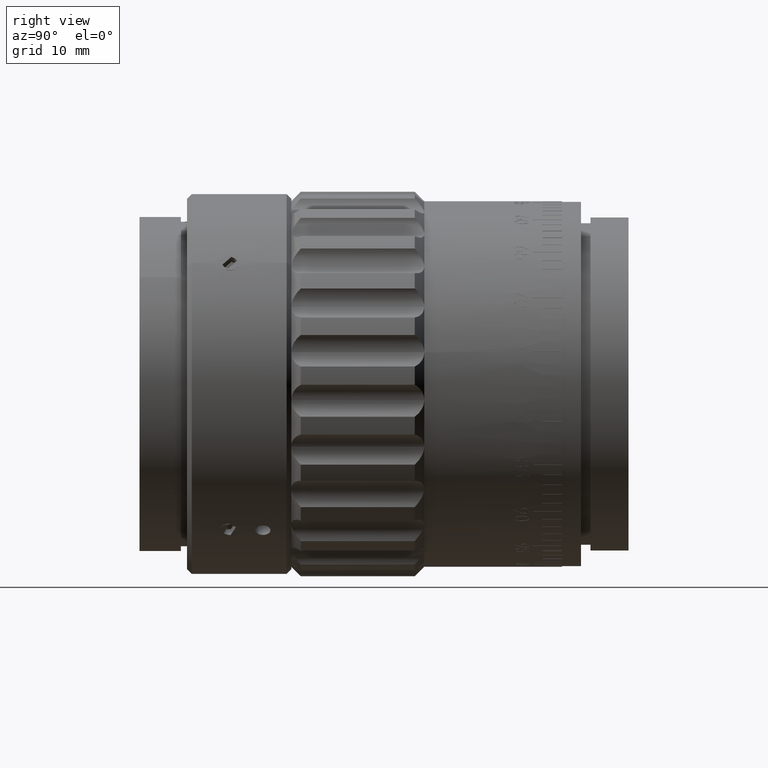
[diagram: clean part render]
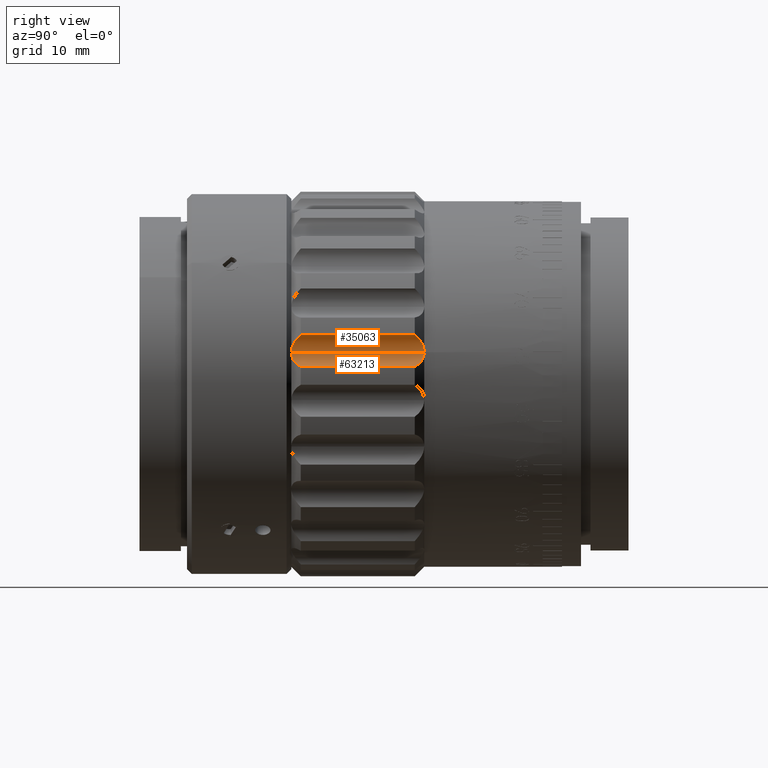
[diagram: same view with one multi-face feature highlighted, each face labeled with its STEP entity id]
A machine part, right view. The highlighted faces form ONE feature: a constant-radius fillet chain: 2 tangent blend faces with common blend radius 2 mm. The faces share edges in the B-rep.
Their STEP definitions:
[1] entity #63213 (Cylinder):
#169 = CARTESIAN_POINT ( 'NONE',  ( 1.689331474415179500, -15.21457821189761700, 20.17941176470588300 ) ) ;
#901 = CARTESIAN_POINT ( 'NONE',  ( 0.6469208136554194200, -28.09866492122143500, 19.35530132291251300 ) ) ;
#1381 = CYLINDRICAL_SURFACE ( 'NONE', #24734, 2.000000000000001800 ) ;
#1629 = CARTESIAN_POINT ( 'NONE',  ( 0.8924242504996315900, -27.98627902371864100, 19.45800297024074500 ) ) ;
#4379 = CARTESIAN_POINT ( 'NONE',  ( 0.0000000000000000000, -2.714578211897591900, 21.25000000000003200 ) ) ;
#7131 = CARTESIAN_POINT ( 'NONE',  ( 0.1924684439730819100, -14.22232636360995700, 19.25701502290277700 ) ) ;
#9301 = CARTESIAN_POINT ( 'NONE',  ( 1.612277997658264800, -27.34216877474892000, 20.05782546363579800 ) ) ;
#9544 = ORIENTED_EDGE ( 'NONE', *, *, #99665, .T. ) ;
#10491 = FACE_OUTER_BOUND ( 'NONE', #49579, .T. ) ;
#10872 = EDGE_CURVE ( 'NONE', #45040, #30666, #55238, .T. ) ;
#12432 = DIRECTION ( 'NONE',  ( 0.0000000000000000000, 0.0000000000000000000, -1.000000000000000000 ) ) ;
#15543 = CARTESIAN_POINT ( 'NONE',  ( 0.9685587019836825500, -14.48667491162578700, 19.49817720688123800 ) ) ;
#22971 = DIRECTION ( 'NONE',  ( -0.0000000000000000000, -1.000000000000000000, -0.0000000000000000000 ) ) ;
#24449 = VERTEX_POINT ( 'NONE', #69302 ) ;
#24734 = AXIS2_PLACEMENT_3D ( 'NONE', #4379, #62545, #12432 ) ;
#30666 = VERTEX_POINT ( 'NONE', #44466 ) ;
#32839 = CARTESIAN_POINT ( 'NONE',  ( 1.689331474415180800, -27.21457821189758500, 20.17941176470588300 ) ) ;
#33379 = ORIENTED_EDGE ( 'NONE', *, *, #82600, .T. ) ;
#34561 = CARTESIAN_POINT ( 'NONE',  ( 0.3830866627948920600, -28.18305819022596700, 19.27850232737179000 ) ) ;
#34891 = CARTESIAN_POINT ( 'NONE',  ( 1.689331474415179500, -15.21457821189761700, 20.17941176470588300 ) ) ;
#40808 = EDGE_CURVE ( 'NONE', #24449, #44417, #76154, .T. ) ;
#40951 = LINE ( 'NONE', #73110, #76360 ) ;
#41235 = VECTOR ( 'NONE', #77822, 1000.000000000000000 ) ;
#42603 = CARTESIAN_POINT ( 'NONE',  ( 1.521346338354015300, -27.46400353888410400, 19.94287823508873500 ) ) ;
#44417 = VERTEX_POINT ( 'NONE', #32839 ) ;
#44466 = CARTESIAN_POINT ( 'NONE',  ( -7.571701538477491400E-021, -14.21457821189763800, 19.25000000000003200 ) ) ;
#45040 = VERTEX_POINT ( 'NONE', #34891 ) ;
#48840 = CARTESIAN_POINT ( 'NONE',  ( 0.6476829353627365800, -14.33076888788117700, 19.35555401056183200 ) ) ;
#49191 = CARTESIAN_POINT ( 'NONE',  ( 1.521442548785324300, -14.96534390872483700, 19.94306025935076900 ) ) ;
#49579 = EDGE_LOOP ( 'NONE', ( #72049, #9544, #108106, #33379 ) ) ;
#51725 = CARTESIAN_POINT ( 'NONE',  ( 0.1907261648417812900, -28.21457821189755300, 19.25000000000003200 ) ) ;
#55238 = B_SPLINE_CURVE_WITH_KNOTS ( 'NONE', 3,
 ( #169, #67115, #49191, #57256, #82112, #15543, #82834, #100086, #48840, #90603, #98990, #7131, #65682, #74096 ),
 .UNSPECIFIED., .F., .F.,
 ( 4, 2, 2, 2, 2, 2, 4 ),
 ( 2.970869716988831700E-007, 0.0005690120454595701700, 0.001137727003947441600, 0.001422084483191379800, 0.001706441962435317800, 0.001990799441679255800, 0.002275156920923194000 ),
 .UNSPECIFIED. ) ;
#57256 = CARTESIAN_POINT ( 'NONE',  ( 1.307576527927193600, -14.73671812738854600, 19.72910469178298600 ) ) ;
#60254 = CARTESIAN_POINT ( 'NONE',  ( 1.689331474415182200, -15.71457821189758900, 20.17941176470588600 ) ) ;
#62545 = DIRECTION ( 'NONE',  ( -0.0000000000000000000, -1.000000000000000000, -0.0000000000000000000 ) ) ;
#63213 = ADVANCED_FACE ( 'NONE', ( #10491 ), #1381, .F. ) ;
#65682 = CARTESIAN_POINT ( 'NONE',  ( 0.09549254744762085400, -14.21457821189764000, 19.25000000000003900 ) ) ;
#67115 = CARTESIAN_POINT ( 'NONE',  ( 1.612261963632528200, -15.08696109877944000, 20.05780016279327400 ) ) ;
#69302 = CARTESIAN_POINT ( 'NONE',  ( 7.571733092913700300E-021, -28.21457821189756000, 19.25000000000003200 ) ) ;
#72049 = ORIENTED_EDGE ( 'NONE', *, *, #10872, .T. ) ;
#73110 = CARTESIAN_POINT ( 'NONE',  ( 0.0000000000000000000, -2.714578211897591900, 19.25000000000003200 ) ) ;
#74096 = CARTESIAN_POINT ( 'NONE',  ( -7.571701538477491400E-021, -14.21457821189763800, 19.25000000000003200 ) ) ;
#76154 = B_SPLINE_CURVE_WITH_KNOTS ( 'NONE', 3,
 ( #83931, #51725, #34561, #901, #92416, #1629, #100437, #100798, #76620, #42603, #9301, #101161 ),
 .UNSPECIFIED., .F., .F.,
 ( 4, 2, 2, 2, 2, 4 ),
 ( 0.002275156920923187100, 0.002843100838117568300, 0.003127072796714760400, 0.003411044755311952500, 0.003978988672506337200, 0.004546932589700721500 ),
 .UNSPECIFIED. ) ;
#76360 = VECTOR ( 'NONE', #22971, 1000.000000000000000 ) ;
#76620 = CARTESIAN_POINT ( 'NONE',  ( 1.306540373061877400, -27.69345732087432000, 19.72815433006917000 ) ) ;
#77822 = DIRECTION ( 'NONE',  ( 0.0000000000000000000, 1.000000000000000000, 0.0000000000000000000 ) ) ;
#82112 = CARTESIAN_POINT ( 'NONE',  ( 1.182787516471674800, -14.62828829312135600, 19.62859014386028300 ) ) ;
#82600 = EDGE_CURVE ( 'NONE', #44417, #45040, #85776, .T. ) ;
#82834 = CARTESIAN_POINT ( 'NONE',  ( 0.8931696714085261000, -14.44328464658763200, 19.45837622916965900 ) ) ;
#83931 = CARTESIAN_POINT ( 'NONE',  ( 7.571733092913700300E-021, -28.21457821189756000, 19.25000000000003200 ) ) ;
#85776 = LINE ( 'NONE', #60254, #41235 ) ;
#90603 = CARTESIAN_POINT ( 'NONE',  ( 0.4715044368660112900, -14.27434727233358000, 19.30420906629871800 ) ) ;
#92416 = CARTESIAN_POINT ( 'NONE',  ( 0.7323215535185708700, -28.06407437013007900, 19.38683614789306400 ) ) ;
#98990 = CARTESIAN_POINT ( 'NONE',  ( 0.3805940789337886600, -14.25235311255986500, 19.28424788746363200 ) ) ;
#99665 = EDGE_CURVE ( 'NONE', #30666, #24449, #40951, .T. ) ;
#100086 = CARTESIAN_POINT ( 'NONE',  ( 0.7331668030567378700, -14.36544817379958200, 19.38717036822367500 ) ) ;
#100437 = CARTESIAN_POINT ( 'NONE',  ( 0.9675966021047373000, -27.94303646354546100, 19.49766810684268800 ) ) ;
#100798 = CARTESIAN_POINT ( 'NONE',  ( 1.180715189280883400, -27.80239782530187000, 19.62717757147450500 ) ) ;
#101161 = CARTESIAN_POINT ( 'NONE',  ( 1.689331474415180800, -27.21457821189758500, 20.17941176470588300 ) ) ;
#108106 = ORIENTED_EDGE ( 'NONE', *, *, #40808, .T. ) ;
[2] entity #35063 (Cylinder):
#1209 = CARTESIAN_POINT ( 'NONE',  ( -0.1924684439730819100, -28.20683006018524400, 19.25701502290277700 ) ) ;
#3051 = VECTOR ( 'NONE', #55858, 1000.000000000000000 ) ;
#3488 = CARTESIAN_POINT ( 'NONE',  ( -0.8924242504996302600, -14.44287740007654500, 19.45800297024074900 ) ) ;
#4314 = CARTESIAN_POINT ( 'NONE',  ( 0.0000000000000000000, -2.714578211897591900, 21.25000000000003200 ) ) ;
#7066 = CARTESIAN_POINT ( 'NONE',  ( -0.8931696714085255500, -27.98587177720756400, 19.45837622916965200 ) ) ;
#12252 = CARTESIAN_POINT ( 'NONE',  ( -0.9675966021047357500, -14.48611996024973400, 19.49766810684268800 ) ) ;
#16925 = CARTESIAN_POINT ( 'NONE',  ( -1.689331474415180400, -27.21457821189758500, 20.17941176470588300 ) ) ;
#19948 = CARTESIAN_POINT ( 'NONE',  ( -1.180715189280881100, -14.62675859849333500, 19.62717757147450100 ) ) ;
#20960 = CYLINDRICAL_SURFACE ( 'NONE', #80595, 2.000000000000001800 ) ;
#21553 = CARTESIAN_POINT ( 'NONE',  ( -1.689331474415180400, -27.21457821189758500, 20.17941176470588300 ) ) ;
#21933 = EDGE_LOOP ( 'NONE', ( #78114, #90760, #91994, #103740 ) ) ;
#22971 = DIRECTION ( 'NONE',  ( -0.0000000000000000000, -1.000000000000000000, -0.0000000000000000000 ) ) ;
#23555 = CARTESIAN_POINT ( 'NONE',  ( -1.521442548785323600, -27.46381251507035900, 19.94306025935077300 ) ) ;
#24449 = VERTEX_POINT ( 'NONE', #69302 ) ;
#26440 = CARTESIAN_POINT ( 'NONE',  ( -0.4715044368660115100, -28.15480915146161700, 19.30420906629872100 ) ) ;
#28015 = CARTESIAN_POINT ( 'NONE',  ( -0.3830866627948914000, -14.24609823356923000, 19.27850232737179000 ) ) ;
#28370 = CARTESIAN_POINT ( 'NONE',  ( -0.7323215535185702000, -14.36508205366512000, 19.38683614789306700 ) ) ;
#29878 = B_SPLINE_CURVE_WITH_KNOTS ( 'NONE', 3,
 ( #16925, #75139, #23555, #58281, #33425, #48774, #7066, #84605, #83867, #26440, #75849, #1209, #51668, #34861 ),
 .UNSPECIFIED., .F., .F.,
 ( 4, 2, 2, 2, 2, 2, 4 ),
 ( 2.970869716972301300E-007, 0.0005690120454595672400, 0.001137727003947437300, 0.001422084483191374400, 0.001706441962435311700, 0.001990799441679249700, 0.002275156920923187100 ),
 .UNSPECIFIED. ) ;
#29923 = DIRECTION ( 'NONE',  ( -0.0000000000000000000, -1.000000000000000000, -0.0000000000000000000 ) ) ;
#30462 = B_SPLINE_CURVE_WITH_KNOTS ( 'NONE', 3,
 ( #53593, #70800, #28015, #87653, #28370, #3488, #12252, #19948, #44855, #60938, #45210, #103741 ),
 .UNSPECIFIED., .F., .F.,
 ( 4, 2, 2, 2, 2, 4 ),
 ( 0.002275156920923194000, 0.002843100838117575200, 0.003127072796714765200, 0.003411044755311955100, 0.003978988672506341600, 0.004546932589700729300 ),
 .UNSPECIFIED. ) ;
#30666 = VERTEX_POINT ( 'NONE', #44466 ) ;
#33425 = CARTESIAN_POINT ( 'NONE',  ( -1.182787516471675200, -27.80086813067384100, 19.62859014386028600 ) ) ;
#34861 = CARTESIAN_POINT ( 'NONE',  ( 7.571733092913700300E-021, -28.21457821189756000, 19.25000000000003200 ) ) ;
#35063 = ADVANCED_FACE ( 'NONE', ( #55049 ), #20960, .F. ) ;
#36036 = EDGE_CURVE ( 'NONE', #30666, #84109, #30462, .T. ) ;
#40951 = LINE ( 'NONE', #73110, #76360 ) ;
#44466 = CARTESIAN_POINT ( 'NONE',  ( -7.571701538477491400E-021, -14.21457821189763800, 19.25000000000003200 ) ) ;
#44855 = CARTESIAN_POINT ( 'NONE',  ( -1.306540373061875600, -14.73569910292088600, 19.72815433006916700 ) ) ;
#45210 = CARTESIAN_POINT ( 'NONE',  ( -1.612277997658263100, -15.08698764904627700, 20.05782546363578000 ) ) ;
#46732 = DIRECTION ( 'NONE',  ( 0.0000000000000000000, 0.0000000000000000000, -1.000000000000000000 ) ) ;
#48774 = CARTESIAN_POINT ( 'NONE',  ( -0.9685587019836822100, -27.94248151216941500, 19.49817720688122700 ) ) ;
#51668 = CARTESIAN_POINT ( 'NONE',  ( -0.09549254744762091000, -28.21457821189755700, 19.25000000000003600 ) ) ;
#53593 = CARTESIAN_POINT ( 'NONE',  ( -7.571701538477491400E-021, -14.21457821189763800, 19.25000000000003200 ) ) ;
#55049 = FACE_OUTER_BOUND ( 'NONE', #21933, .T. ) ;
#55858 = DIRECTION ( 'NONE',  ( -0.0000000000000000000, -1.000000000000000000, -0.0000000000000000000 ) ) ;
#57300 = EDGE_CURVE ( 'NONE', #84109, #64362, #86857, .T. ) ;
#58281 = CARTESIAN_POINT ( 'NONE',  ( -1.307576527927192900, -27.69243829640665700, 19.72910469178299000 ) ) ;
#60938 = CARTESIAN_POINT ( 'NONE',  ( -1.521346338354011600, -14.96515288491109500, 19.94287823508873500 ) ) ;
#64362 = VERTEX_POINT ( 'NONE', #21553 ) ;
#69302 = CARTESIAN_POINT ( 'NONE',  ( 7.571733092913700300E-021, -28.21457821189756000, 19.25000000000003200 ) ) ;
#70800 = CARTESIAN_POINT ( 'NONE',  ( -0.1907261648417810900, -14.21457821189763800, 19.25000000000002500 ) ) ;
#72006 = CARTESIAN_POINT ( 'NONE',  ( -1.689331474415174400, -15.21457821189761700, 20.17941176470588300 ) ) ;
#73110 = CARTESIAN_POINT ( 'NONE',  ( 0.0000000000000000000, -2.714578211897591900, 19.25000000000003200 ) ) ;
#75139 = CARTESIAN_POINT ( 'NONE',  ( -1.612261963632528200, -27.34219532501576200, 20.05780016279327400 ) ) ;
#75849 = CARTESIAN_POINT ( 'NONE',  ( -0.3805940789337887200, -28.17680331123533900, 19.28424788746363200 ) ) ;
#76360 = VECTOR ( 'NONE', #22971, 1000.000000000000000 ) ;
#78114 = ORIENTED_EDGE ( 'NONE', *, *, #99665, .F. ) ;
#80595 = AXIS2_PLACEMENT_3D ( 'NONE', #4314, #29923, #46732 ) ;
#83867 = CARTESIAN_POINT ( 'NONE',  ( -0.6476829353627365800, -28.09838753591401800, 19.35555401056182800 ) ) ;
#84109 = VERTEX_POINT ( 'NONE', #72006 ) ;
#84605 = CARTESIAN_POINT ( 'NONE',  ( -0.7331668030567372000, -28.06370824999562100, 19.38717036822367500 ) ) ;
#86857 = LINE ( 'NONE', #105988, #3051 ) ;
#87653 = CARTESIAN_POINT ( 'NONE',  ( -0.6469208136554183100, -14.33049150257374600, 19.35530132291251300 ) ) ;
#90760 = ORIENTED_EDGE ( 'NONE', *, *, #36036, .T. ) ;
#91994 = ORIENTED_EDGE ( 'NONE', *, *, #57300, .T. ) ;
#96289 = EDGE_CURVE ( 'NONE', #64362, #24449, #29878, .T. ) ;
#99665 = EDGE_CURVE ( 'NONE', #30666, #24449, #40951, .T. ) ;
#103740 = ORIENTED_EDGE ( 'NONE', *, *, #96289, .T. ) ;
#103741 = CARTESIAN_POINT ( 'NONE',  ( -1.689331474415174400, -15.21457821189761700, 20.17941176470588300 ) ) ;
#105988 = CARTESIAN_POINT ( 'NONE',  ( -1.689331474415182200, -15.71457821189758900, 20.17941176470588600 ) ) ;